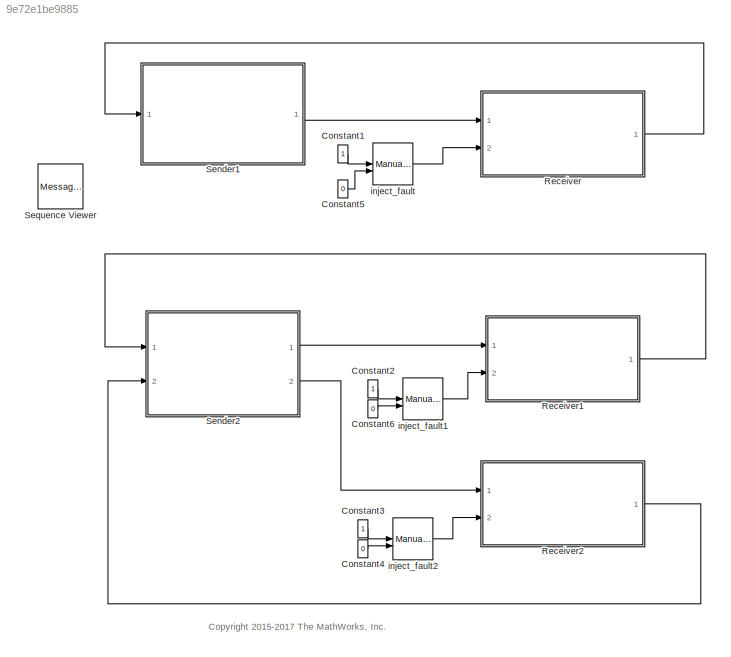
MODEL slx_9e72e1be9885
KIND model
CONFIG AbsTol = auto
CONFIG EnableMultiTasking = on
CONFIG FixedStep = auto
CONFIG MaxStep = auto
CONFIG MinStep = auto
CONFIG RelTol = 1e-3
CONFIG SampleTimeConstraint = Unconstrained
CONFIG Solver = ode45
CONFIG SolverName = ode45
CONFIG StartTime = 0.0
CONFIG StopTime = 20.0
BLOCK [Constant] Constant1
BLOCK [Constant] Constant2
BLOCK [Constant] Constant3
BLOCK [Constant] Constant4
  Value = 0
BLOCK [Constant] Constant5
  Value = 0
BLOCK [Constant] Constant6
  Value = 0
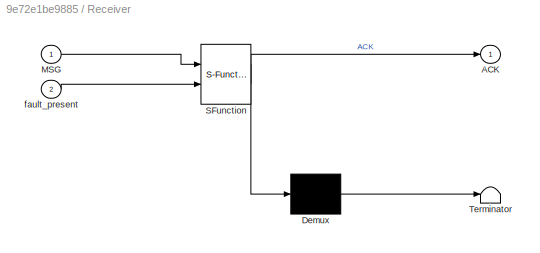
BLOCK [SubSystem] Receiver
  ErrorFcn = Stateflow.Translate.translate
  PermitHierarchicalResolution = ExplicitOnly
  Ports = [2, 1]
  RequestExecContextInheritance = off
  SFBlockType = Chart
  TreatAsAtomicUnit = on
  Variant = off
BLOCK [Demux] Receiver/ Demux 
  Outputs = 1
  Ports = [1, 1]
BLOCK [S-Function] Receiver/ SFunction 
  EnableBusSupport = off
  FunctionName = sf_sfun
  PortCounts = [2 2]
  Ports = [2, 2]
  SFcnIsStateOwnerBlock = off
  SFunctionDeploymentMode = off
  Tag = Stateflow S-Function sf_msg_acknowledge 1
BLOCK [Terminator] Receiver/ Terminator 
BLOCK [Outport] Receiver/ACK
  IconDisplay = Port number
BLOCK [Inport] Receiver/MSG
  IconDisplay = Port number
BLOCK [Inport] Receiver/fault_present
  IconDisplay = Port number
  Port = 2
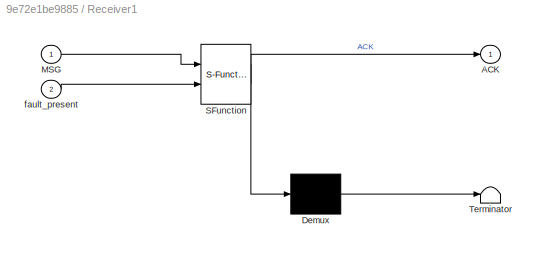
BLOCK [SubSystem] Receiver1
  ErrorFcn = Stateflow.Translate.translate
  PermitHierarchicalResolution = ExplicitOnly
  Ports = [2, 1]
  RequestExecContextInheritance = off
  SFBlockType = Chart
  TreatAsAtomicUnit = on
  Variant = off
BLOCK [Demux] Receiver1/ Demux 
  Outputs = 1
  Ports = [1, 1]
BLOCK [S-Function] Receiver1/ SFunction 
  EnableBusSupport = off
  FunctionName = sf_sfun
  PortCounts = [2 2]
  Ports = [2, 2]
  SFcnIsStateOwnerBlock = off
  SFunctionDeploymentMode = off
  Tag = Stateflow S-Function sf_msg_acknowledge 2
BLOCK [Terminator] Receiver1/ Terminator 
BLOCK [Outport] Receiver1/ACK
  IconDisplay = Port number
BLOCK [Inport] Receiver1/MSG
  IconDisplay = Port number
BLOCK [Inport] Receiver1/fault_present
  IconDisplay = Port number
  Port = 2
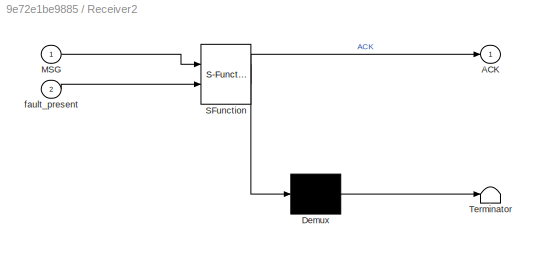
BLOCK [SubSystem] Receiver2
  ErrorFcn = Stateflow.Translate.translate
  PermitHierarchicalResolution = ExplicitOnly
  Ports = [2, 1]
  RequestExecContextInheritance = off
  SFBlockType = Chart
  TreatAsAtomicUnit = on
  Variant = off
BLOCK [Demux] Receiver2/ Demux 
  Outputs = 1
  Ports = [1, 1]
BLOCK [S-Function] Receiver2/ SFunction 
  EnableBusSupport = off
  FunctionName = sf_sfun
  PortCounts = [2 2]
  Ports = [2, 2]
  SFcnIsStateOwnerBlock = off
  SFunctionDeploymentMode = off
  Tag = Stateflow S-Function sf_msg_acknowledge 4
BLOCK [Terminator] Receiver2/ Terminator 
BLOCK [Outport] Receiver2/ACK
  IconDisplay = Port number
BLOCK [Inport] Receiver2/MSG
  IconDisplay = Port number
BLOCK [Inport] Receiver2/fault_present
  IconDisplay = Port number
  Port = 2
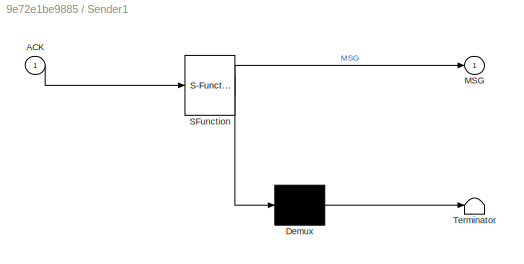
BLOCK [SubSystem] Sender1
  ErrorFcn = Stateflow.Translate.translate
  PermitHierarchicalResolution = ExplicitOnly
  Ports = [1, 1]
  RequestExecContextInheritance = off
  SFBlockType = Chart
  TreatAsAtomicUnit = on
  Variant = off
BLOCK [Demux] Sender1/ Demux 
  Outputs = 1
  Ports = [1, 1]
BLOCK [S-Function] Sender1/ SFunction 
  EnableBusSupport = off
  FunctionName = sf_sfun
  PortCounts = [1 2]
  Ports = [1, 2]
  SFcnIsStateOwnerBlock = off
  SFunctionDeploymentMode = off
  Tag = Stateflow S-Function sf_msg_acknowledge 3
BLOCK [Terminator] Sender1/ Terminator 
BLOCK [Inport] Sender1/ACK
  IconDisplay = Port number
BLOCK [Outport] Sender1/MSG
  IconDisplay = Port number
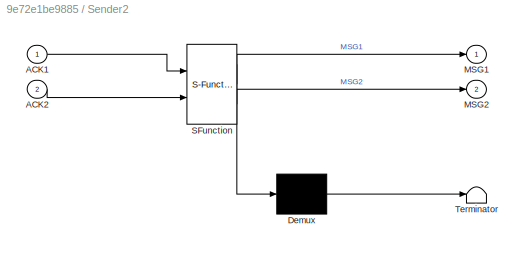
BLOCK [SubSystem] Sender2
  ErrorFcn = Stateflow.Translate.translate
  PermitHierarchicalResolution = ExplicitOnly
  Ports = [2, 2]
  RequestExecContextInheritance = off
  SFBlockType = Chart
  TreatAsAtomicUnit = on
  Variant = off
BLOCK [Demux] Sender2/ Demux 
  Outputs = 1
  Ports = [1, 1]
BLOCK [S-Function] Sender2/ SFunction 
  EnableBusSupport = off
  FunctionName = sf_sfun
  PortCounts = [2 3]
  Ports = [2, 3]
  SFcnIsStateOwnerBlock = off
  SFunctionDeploymentMode = off
  Tag = Stateflow S-Function sf_msg_acknowledge 5
BLOCK [Terminator] Sender2/ Terminator 
BLOCK [Inport] Sender2/ACK1
  IconDisplay = Port number
BLOCK [Inport] Sender2/ACK2
  IconDisplay = Port number
  Port = 2
BLOCK [Outport] Sender2/MSG1
  IconDisplay = Port number
BLOCK [Outport] Sender2/MSG2
  IconDisplay = Port number
  Port = 2
BLOCK [MessageViewer] Sequence Viewer
BLOCK [ManualSwitch] inject_fault
BLOCK [ManualSwitch] inject_fault1
  CurrentSetting = 0
BLOCK [ManualSwitch] inject_fault2
  CurrentSetting = 0
ANNOTATION (root): <copyright redacted>
LINE Constant1:1 -> inject_fault:1
LINE Constant2:1 -> inject_fault1:1
LINE Constant3:1 -> inject_fault2:1
LINE Constant4:1 -> inject_fault2:2
LINE Constant5:1 -> inject_fault:2
LINE Constant6:1 -> inject_fault1:2
LINE Receiver1:1 -> Sender2:1
LINE Receiver2:1 -> Sender2:2
LINE Receiver:1 -> Sender1:1
LINE Sender1:1 -> Receiver:1
LINE Sender2:1 -> Receiver1:1
LINE Sender2:2 -> Receiver2:1
LINE inject_fault1:1 -> Receiver1:2
LINE inject_fault2:1 -> Receiver2:2
LINE inject_fault:1 -> Receiver:2
CHART Receiver states=3 transitions=4
  STATE_LABEL 'Idle'
  STATE_LABEL 'Processing'
  STATE_LABEL 'SendAcknowledgement\nentry:\nACK.data = 1;\nsend(ACK);'
CHART Receiver1 states=3 transitions=4
  STATE_LABEL 'Idle'
  STATE_LABEL 'Processing'
  STATE_LABEL 'SendAcknowledgement\nentry:\nACK.data = 1;\nsend(ACK);'
CHART Sender1 states=4 transitions=4
  STATE_LABEL 'Idle'
  STATE_LABEL 'SendMessageAndWait\nentry:\nMSG.data=1;\nsend(MSG);'
  STATE_LABEL 'TimedOut\n'
  STATE_LABEL 'Done\n'
CHART Receiver2 states=3 transitions=4
  STATE_LABEL 'Idle'
  STATE_LABEL 'Processing'
  STATE_LABEL 'SendAcknowledgement\nentry:\nACK.data = 1;\nsend(ACK);'
CHART Sender2 states=5 transitions=5
  STATE_LABEL 'Idle'
  STATE_LABEL 'SendMessage\nentry:\nMSG1.data=1;\nsend(MSG1);\nMSG2.data=1;\nsend(MSG2);'
  STATE_LABEL 'WaitForAcknowledgements\nentry:\nackCount =0;\non ACK1: ackCount = ackCount + 1;\non ACK2: ackCount = ackCount + 1;\n'
  STATE_LABEL 'TimedOut\n'
  STATE_LABEL 'Done\n'
